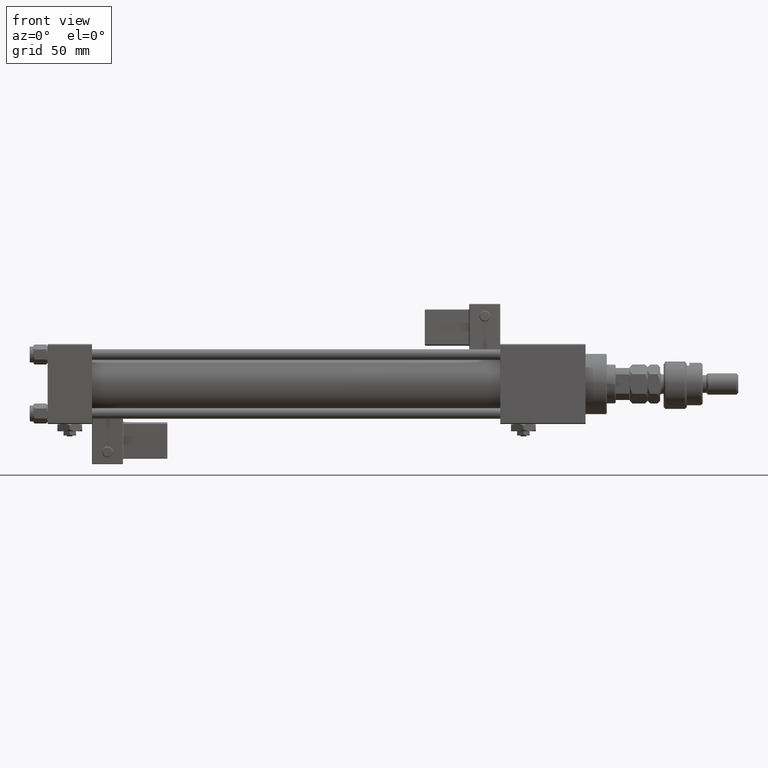
[diagram: clean part render]
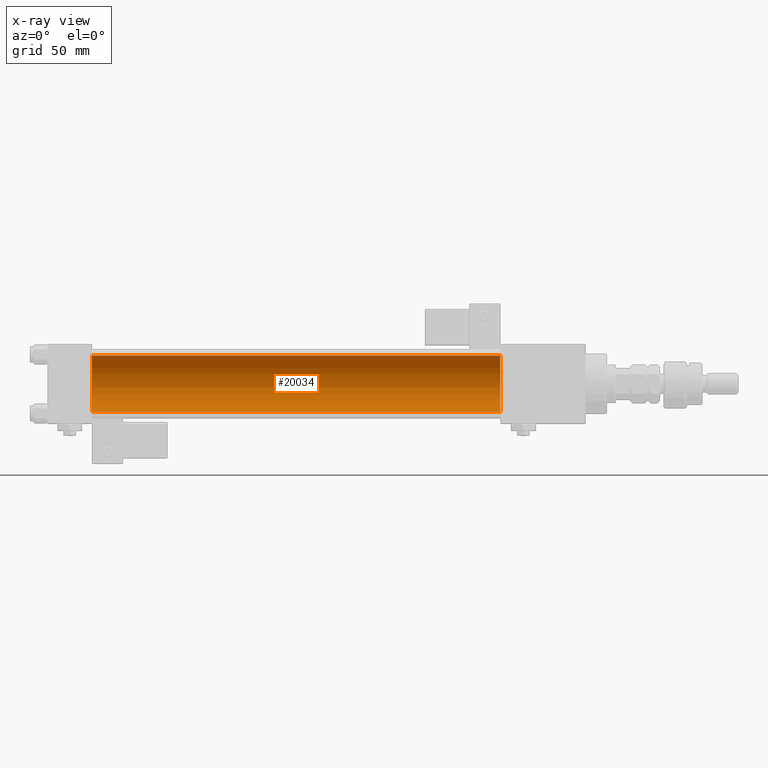
[diagram: x-ray — body ghosted, one internal face saturated and labeled with its STEP entity id]
A machine part, front view, then the same camera in x-ray: the body is ghosted and one INTERNAL B-rep face — a face not visible from any outside direction — is saturated and labeled: STEP entity #20034.
In plain terms, the highlighted cylindrical surface (edge-blend (fillet) strip) has radius 16 mm, axis along (-1, -0, -0).
Its self-contained STEP definition (entity closure, byte-faithful):
#1168 = DIRECTION ( 'NONE',  ( -1.000000000000000000, -0.000000000000000000, -0.000000000000000000 ) ) ;
#2258 = VERTEX_POINT ( 'NONE', #22726 ) ;
#3245 = ORIENTED_EDGE ( 'NONE', *, *, #4410, .T. ) ;
#4286 = VERTEX_POINT ( 'NONE', #18487 ) ;
#4410 = EDGE_CURVE ( 'NONE', #2258, #39006, #51795, .T. ) ;
#4931 = LINE ( 'NONE', #22669, #54734 ) ;
#8819 = CARTESIAN_POINT ( 'NONE',  ( 255.0000000000000000, -2.602085213965210642E-15, 16.00000000000000000 ) ) ;
#12263 = EDGE_CURVE ( 'NONE', #39006, #38266, #53808, .T. ) ;
#15279 = DIRECTION ( 'NONE',  ( 0.000000000000000000, 0.000000000000000000, -1.000000000000000000 ) ) ;
#18343 = EDGE_CURVE ( 'NONE', #2258, #4286, #4931, .T. ) ;
#18487 = CARTESIAN_POINT ( 'NONE',  ( 25.00000000000000000, -6.426503353294456087E-16, -16.00000000000000000 ) ) ;
#18581 = ORIENTED_EDGE ( 'NONE', *, *, #18775, .F. ) ;
#18775 = EDGE_CURVE ( 'NONE', #4286, #38266, #40837, .T. ) ;
#20034 = ADVANCED_FACE ( 'NONE', ( #49419 ), #31396, .F. ) ;
#22105 = AXIS2_PLACEMENT_3D ( 'NONE', #47198, #50996, #15279 ) ;
#22669 = CARTESIAN_POINT ( 'NONE',  ( 255.0000000000000000, -6.426503353294456087E-16, -16.00000000000000000 ) ) ;
#22709 = CARTESIAN_POINT ( 'NONE',  ( 255.0000000000000000, -2.602085213965210642E-15, 0.000000000000000000 ) ) ;
#22726 = CARTESIAN_POINT ( 'NONE',  ( 255.0000000000000000, -6.426503353294456087E-16, -16.00000000000000000 ) ) ;
#24815 = ORIENTED_EDGE ( 'NONE', *, *, #12263, .T. ) ;
#26759 = DIRECTION ( 'NONE',  ( 0.000000000000000000, 0.000000000000000000, 1.000000000000000000 ) ) ;
#26946 = EDGE_LOOP ( 'NONE', ( #56347, #3245, #24815, #18581 ) ) ;
#31396 = CYLINDRICAL_SURFACE ( 'NONE', #50176, 16.00000000000000000 ) ;
#31545 = CARTESIAN_POINT ( 'NONE',  ( 255.0000000000000000, -2.602085213965210642E-15, 16.00000000000000000 ) ) ;
#37884 = DIRECTION ( 'NONE',  ( 1.000000000000000000, 0.000000000000000000, 0.000000000000000000 ) ) ;
#38266 = VERTEX_POINT ( 'NONE', #46343 ) ;
#39006 = VERTEX_POINT ( 'NONE', #31545 ) ;
#39884 = DIRECTION ( 'NONE',  ( -1.000000000000000000, -0.000000000000000000, -0.000000000000000000 ) ) ;
#40837 = CIRCLE ( 'NONE', #45492, 16.00000000000000000 ) ;
#42531 = CARTESIAN_POINT ( 'NONE',  ( 25.00000000000000000, -2.602085213965210642E-15, 0.000000000000000000 ) ) ;
#44438 = DIRECTION ( 'NONE',  ( -1.000000000000000000, -0.000000000000000000, -0.000000000000000000 ) ) ;
#45492 = AXIS2_PLACEMENT_3D ( 'NONE', #42531, #37884, #46309 ) ;
#46309 = DIRECTION ( 'NONE',  ( 0.000000000000000000, 0.000000000000000000, -1.000000000000000000 ) ) ;
#46343 = CARTESIAN_POINT ( 'NONE',  ( 25.00000000000000000, -2.602085213965210642E-15, 16.00000000000000000 ) ) ;
#47198 = CARTESIAN_POINT ( 'NONE',  ( 255.0000000000000000, -2.602085213965210642E-15, 0.000000000000000000 ) ) ;
#49419 = FACE_OUTER_BOUND ( 'NONE', #26946, .T. ) ;
#50176 = AXIS2_PLACEMENT_3D ( 'NONE', #22709, #1168, #26759 ) ;
#50248 = VECTOR ( 'NONE', #39884, 1000.000000000000000 ) ;
#50996 = DIRECTION ( 'NONE',  ( 1.000000000000000000, 0.000000000000000000, 0.000000000000000000 ) ) ;
#51795 = CIRCLE ( 'NONE', #22105, 16.00000000000000000 ) ;
#53808 = LINE ( 'NONE', #8819, #50248 ) ;
#54734 = VECTOR ( 'NONE', #44438, 1000.000000000000000 ) ;
#56347 = ORIENTED_EDGE ( 'NONE', *, *, #18343, .F. ) ;